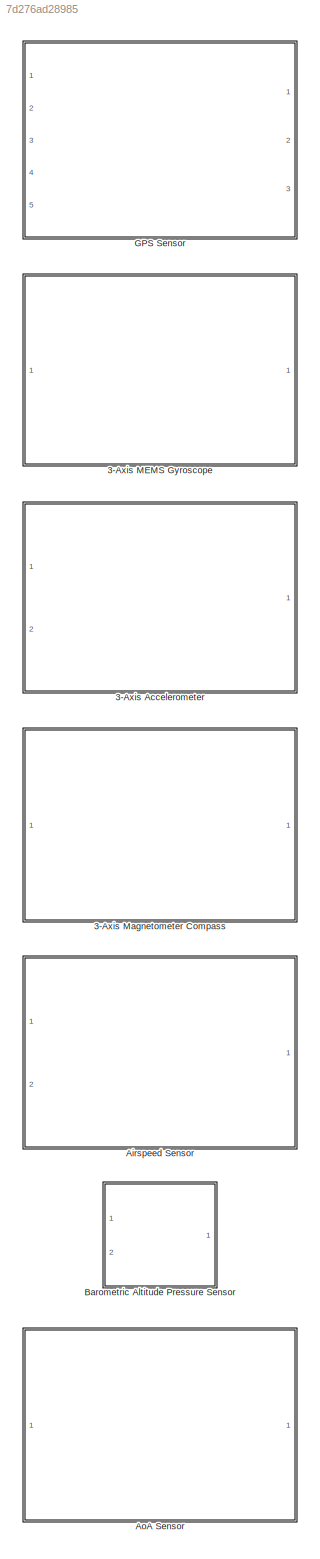
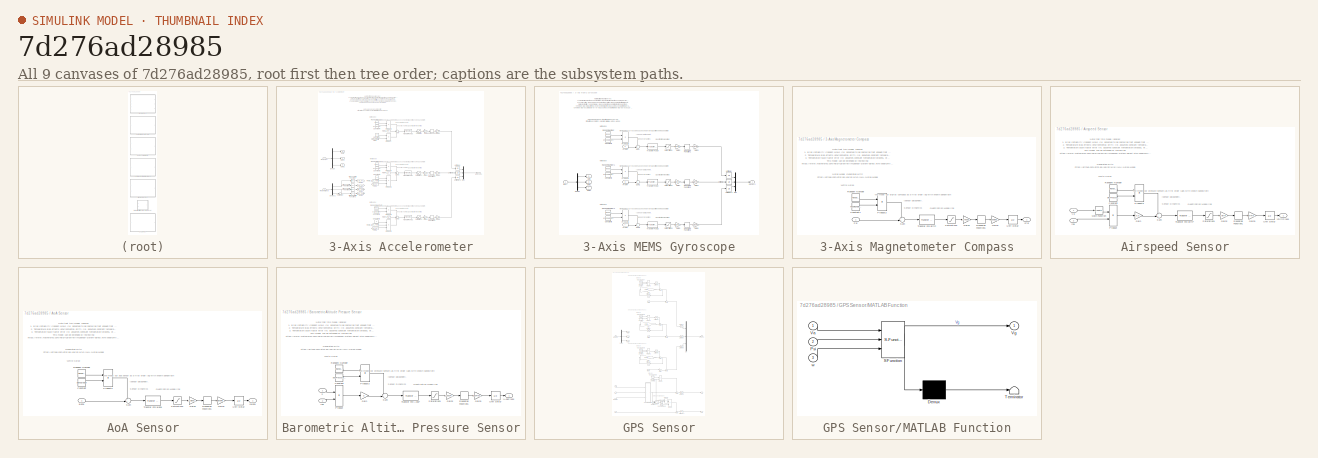
[diagram: thumbnail index - all 9 canvases of the model, root first then tree order]
MODEL slx_7d276ad28985
KIND library
CONFIG AbsTol = auto
CONFIG EnableMultiTasking = off
CONFIG FixedStep = auto
CONFIG MaxStep = auto
CONFIG MinStep = auto
CONFIG RelTol = 1e-3
CONFIG SampleTimeConstraint = Unconstrained
CONFIG Solver = VariableStepAuto
CONFIG SolverName = VariableStepAuto
CONFIG StartTime = 0.0
CONFIG StopTime = 10.0
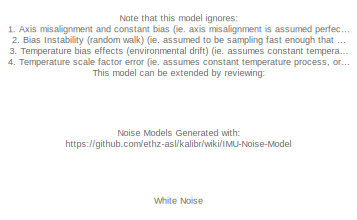
[diagram: 3-Axis Accelerometer - part 1/3, top left region]
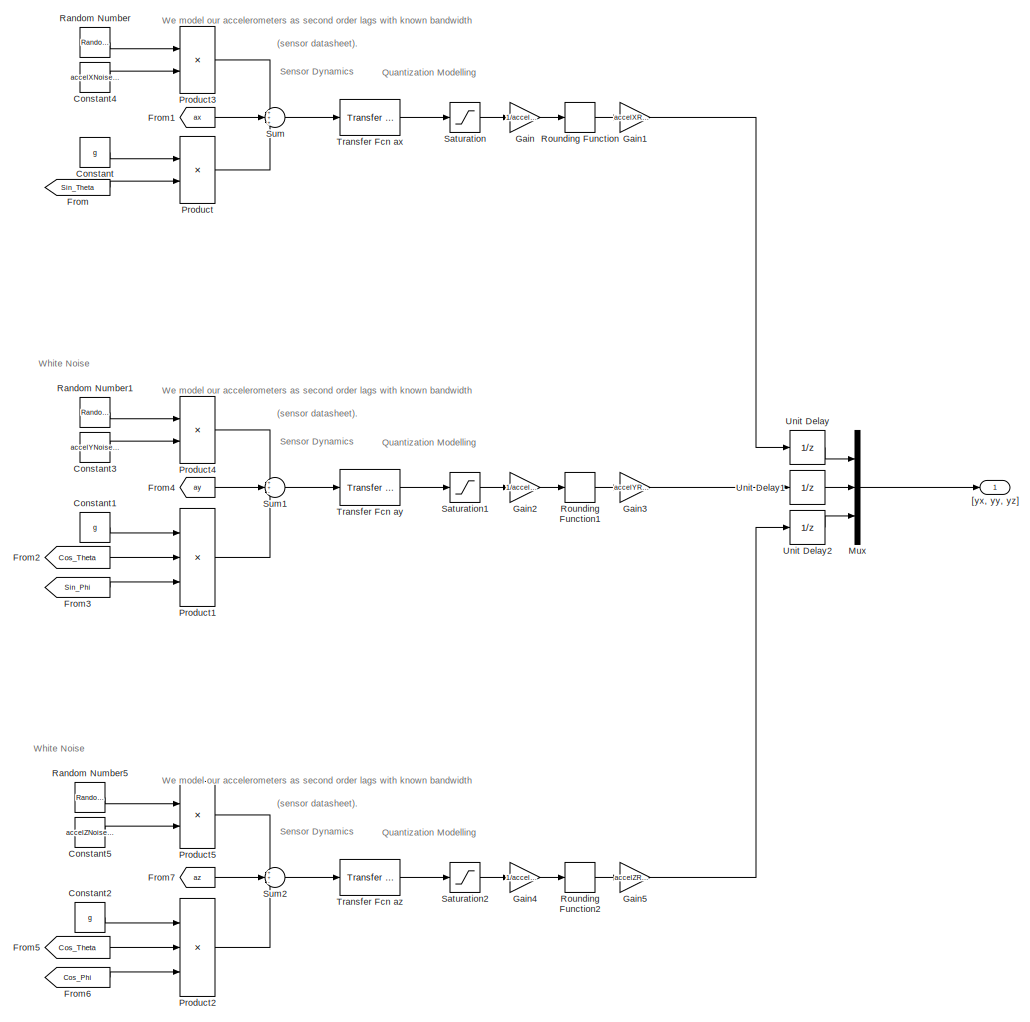
[diagram: 3-Axis Accelerometer - part 2/3, center side, full height]
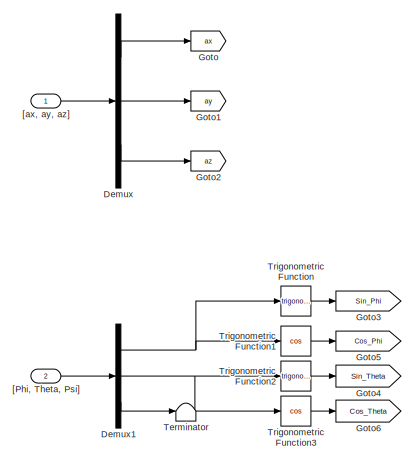
[diagram: 3-Axis Accelerometer - part 3/3, middle left region]
BLOCK [SubSystem] 3-Axis Accelerometer
  Ports = [2, 1]
  RequestExecContextInheritance = off
BLOCK [Constant] 3-Axis Accelerometer/Constant
  Value = g
BLOCK [Constant] 3-Axis Accelerometer/Constant1
  Value = g
BLOCK [Constant] 3-Axis Accelerometer/Constant2
  Value = g
BLOCK [Constant] 3-Axis Accelerometer/Constant3
  Value = accelYNoiseDensity*(1/sqrt(SampleTime))
BLOCK [Constant] 3-Axis Accelerometer/Constant4
  Value = accelXNoiseDensity*(1/sqrt(SampleTime))
BLOCK [Constant] 3-Axis Accelerometer/Constant5
  Value = accelZNoiseDensity*(1/sqrt(SampleTime))
BLOCK [Demux] 3-Axis Accelerometer/Demux
  DisplayOption = bar
  Outputs = 3
  Ports = [1, 3]
BLOCK [Demux] 3-Axis Accelerometer/Demux1
  DisplayOption = bar
  Outputs = 3
  Ports = [1, 3]
BLOCK [From] 3-Axis Accelerometer/From
  GotoTag = Sin_Theta
BLOCK [From] 3-Axis Accelerometer/From1
  GotoTag = ax
BLOCK [From] 3-Axis Accelerometer/From2
  GotoTag = Cos_Theta
BLOCK [From] 3-Axis Accelerometer/From3
  GotoTag = Sin_Phi
BLOCK [From] 3-Axis Accelerometer/From4
  GotoTag = ay
BLOCK [From] 3-Axis Accelerometer/From5
  GotoTag = Cos_Theta
BLOCK [From] 3-Axis Accelerometer/From6
  GotoTag = Cos_Phi
BLOCK [From] 3-Axis Accelerometer/From7
  GotoTag = az
BLOCK [Gain] 3-Axis Accelerometer/Gain
  Gain = 1/accelXResolution
  OutDataTypeStr = Inherit: Inherit via internal rule
  ParamDataTypeStr = Inherit: Inherit via internal rule
  SaturateOnIntegerOverflow = off
BLOCK [Gain] 3-Axis Accelerometer/Gain1
  Gain = accelXResolution
  OutDataTypeStr = Inherit: Inherit via internal rule
  ParamDataTypeStr = Inherit: Inherit via internal rule
  SaturateOnIntegerOverflow = off
BLOCK [Gain] 3-Axis Accelerometer/Gain2
  Gain = 1/accelYResolution
  OutDataTypeStr = Inherit: Inherit via internal rule
  ParamDataTypeStr = Inherit: Inherit via internal rule
  SaturateOnIntegerOverflow = off
BLOCK [Gain] 3-Axis Accelerometer/Gain3
  Gain = accelYResolution
  OutDataTypeStr = Inherit: Inherit via internal rule
  ParamDataTypeStr = Inherit: Inherit via internal rule
  SaturateOnIntegerOverflow = off
BLOCK [Gain] 3-Axis Accelerometer/Gain4
  Gain = 1/accelZResolution
  OutDataTypeStr = Inherit: Inherit via internal rule
  ParamDataTypeStr = Inherit: Inherit via internal rule
  SaturateOnIntegerOverflow = off
BLOCK [Gain] 3-Axis Accelerometer/Gain5
  Gain = accelZResolution
  OutDataTypeStr = Inherit: Inherit via internal rule
  ParamDataTypeStr = Inherit: Inherit via internal rule
  SaturateOnIntegerOverflow = off
BLOCK [Goto] 3-Axis Accelerometer/Goto
  GotoTag = ax
BLOCK [Goto] 3-Axis Accelerometer/Goto1
  GotoTag = ay
BLOCK [Goto] 3-Axis Accelerometer/Goto2
  GotoTag = az
BLOCK [Goto] 3-Axis Accelerometer/Goto3
  GotoTag = Sin_Phi
BLOCK [Goto] 3-Axis Accelerometer/Goto4
  GotoTag = Sin_Theta
BLOCK [Goto] 3-Axis Accelerometer/Goto5
  GotoTag = Cos_Phi
BLOCK [Goto] 3-Axis Accelerometer/Goto6
  GotoTag = Cos_Theta
BLOCK [Mux] 3-Axis Accelerometer/Mux
  DisplayOption = bar
  Inputs = 3
  Ports = [3, 1]
BLOCK [Product] 3-Axis Accelerometer/Product
  InputSameDT = off
  OutDataTypeStr = Inherit: Inherit via internal rule
  Ports = [2, 1]
  RndMeth = Floor
  SaturateOnIntegerOverflow = off
BLOCK [Product] 3-Axis Accelerometer/Product1
  InputSameDT = off
  Inputs = 3
  OutDataTypeStr = Inherit: Inherit via internal rule
  Ports = [3, 1]
  RndMeth = Floor
  SaturateOnIntegerOverflow = off
BLOCK [Product] 3-Axis Accelerometer/Product2
  InputSameDT = off
  Inputs = 3
  OutDataTypeStr = Inherit: Inherit via internal rule
  Ports = [3, 1]
  RndMeth = Floor
  SaturateOnIntegerOverflow = off
BLOCK [Product] 3-Axis Accelerometer/Product3
  InputSameDT = off
  OutDataTypeStr = Inherit: Inherit via internal rule
  Ports = [2, 1]
  RndMeth = Floor
  SaturateOnIntegerOverflow = off
BLOCK [Product] 3-Axis Accelerometer/Product4
  InputSameDT = off
  OutDataTypeStr = Inherit: Inherit via internal rule
  Ports = [2, 1]
  RndMeth = Floor
  SaturateOnIntegerOverflow = off
BLOCK [Product] 3-Axis Accelerometer/Product5
  InputSameDT = off
  OutDataTypeStr = Inherit: Inherit via internal rule
  Ports = [2, 1]
  RndMeth = Floor
  SaturateOnIntegerOverflow = off
BLOCK [RandomNumber] 3-Axis Accelerometer/Random Number
  SampleTime = SampleTime
BLOCK [RandomNumber] 3-Axis Accelerometer/Random Number1
  SampleTime = SampleTime
BLOCK [RandomNumber] 3-Axis Accelerometer/Random Number5
  SampleTime = SampleTime
BLOCK [Rounding] 3-Axis Accelerometer/Rounding Function
BLOCK [Rounding] 3-Axis Accelerometer/Rounding Function1
BLOCK [Rounding] 3-Axis Accelerometer/Rounding Function2
BLOCK [Saturate] 3-Axis Accelerometer/Saturation
  InputPortMap = u0
  LowerLimit = accelXLowerSaturation
  Ports = [1, 1]
  UpperLimit = accelXUpperSaturation
  ZeroCross = off
BLOCK [Saturate] 3-Axis Accelerometer/Saturation1
  InputPortMap = u0
  LowerLimit = accelYLowerSaturation
  Ports = [1, 1]
  UpperLimit = accelYUpperSaturation
  ZeroCross = off
BLOCK [Saturate] 3-Axis Accelerometer/Saturation2
  InputPortMap = u0
  LowerLimit = accelZLowerSaturation
  Ports = [1, 1]
  UpperLimit = accelZUpperSaturation
  ZeroCross = off
BLOCK [Sum] 3-Axis Accelerometer/Sum
  IconShape = round
  InputSameDT = off
  Inputs = +++
  OutDataTypeStr = Inherit: Inherit via internal rule
  Ports = [3, 1]
  SaturateOnIntegerOverflow = off
BLOCK [Sum] 3-Axis Accelerometer/Sum1
  IconShape = round
  InputSameDT = off
  Inputs = ++-
  OutDataTypeStr = Inherit: Inherit via internal rule
  Ports = [3, 1]
  SaturateOnIntegerOverflow = off
BLOCK [Sum] 3-Axis Accelerometer/Sum2
  IconShape = round
  InputSameDT = off
  Inputs = ++-
  OutDataTypeStr = Inherit: Inherit via internal rule
  Ports = [3, 1]
  SaturateOnIntegerOverflow = off
BLOCK [Terminator] 3-Axis Accelerometer/Terminator
BLOCK [Reference] 3-Axis Accelerometer/Transfer Fcn ax  REF=simulink_extras/Additional
Linear/Transfer Fcn
(with initial outputs)
  Ports = [1, 1]
  SourceBlock = simulink_extras/Additional\nLinear/Transfer Fcn\n(with initial outputs)
  SourceProductBaseCode = SL
  SourceProductName = Simulink
  SourceType = Transfer Function with Initial Outputs
BLOCK [Reference] 3-Axis Accelerometer/Transfer Fcn ay  REF=simulink_extras/Additional
Linear/Transfer Fcn
(with initial outputs)
  Ports = [1, 1]
  SourceBlock = simulink_extras/Additional\nLinear/Transfer Fcn\n(with initial outputs)
  SourceProductBaseCode = SL
  SourceProductName = Simulink
  SourceType = Transfer Function with Initial Outputs
BLOCK [Reference] 3-Axis Accelerometer/Transfer Fcn az  REF=simulink_extras/Additional
Linear/Transfer Fcn
(with initial outputs)
  Ports = [1, 1]
  SourceBlock = simulink_extras/Additional\nLinear/Transfer Fcn\n(with initial outputs)
  SourceProductBaseCode = SL
  SourceProductName = Simulink
  SourceType = Transfer Function with Initial Outputs
BLOCK [Trigonometry] 3-Axis Accelerometer/Trigonometric Function
  Ports = [1, 1]
BLOCK [Trigonometry] 3-Axis Accelerometer/Trigonometric Function1
  Operator = cos
  Ports = [1, 1]
BLOCK [Trigonometry] 3-Axis Accelerometer/Trigonometric Function2
  Ports = [1, 1]
BLOCK [Trigonometry] 3-Axis Accelerometer/Trigonometric Function3
  Operator = cos
  Ports = [1, 1]
BLOCK [UnitDelay] 3-Axis Accelerometer/Unit Delay
  InitialCondition = accelXInit
  InputProcessing = Elements as channels (sample based)
  SampleTime = SampleTime
BLOCK [UnitDelay] 3-Axis Accelerometer/Unit Delay1
  InitialCondition = accelYInit
  InputProcessing = Elements as channels (sample based)
  SampleTime = SampleTime
BLOCK [UnitDelay] 3-Axis Accelerometer/Unit Delay2
  InitialCondition = accelZInit
  InputProcessing = Elements as channels (sample based)
  SampleTime = SampleTime
BLOCK [Inport] 3-Axis Accelerometer/[Phi, Theta, Psi]
  IconDisplay = Port number
  Port = 2
BLOCK [Inport] 3-Axis Accelerometer/[ax, ay, az]
  IconDisplay = Port number
BLOCK [Outport] 3-Axis Accelerometer/[yx, yy, yz]
  IconDisplay = Port number
BLOCK [SubSystem] 3-Axis MEMS Gyroscope
  Ports = [1, 1]
  RequestExecContextInheritance = off
BLOCK [Constant] 3-Axis MEMS Gyroscope/Constant3
  Value = gyroYNoiseDensity*(1/sqrt(SampleTime))
BLOCK [Constant] 3-Axis MEMS Gyroscope/Constant4
  Value = gyroXNoiseDensity*(1/sqrt(SampleTime))
BLOCK [Constant] 3-Axis MEMS Gyroscope/Constant5
  Value = gyroZNoiseDensity*(1/sqrt(SampleTime))
BLOCK [Demux] 3-Axis MEMS Gyroscope/Demux
  DisplayOption = bar
  Outputs = 3
  Ports = [1, 3]
BLOCK [From] 3-Axis MEMS Gyroscope/From1
  GotoTag = p
BLOCK [From] 3-Axis MEMS Gyroscope/From4
  GotoTag = q
BLOCK [From] 3-Axis MEMS Gyroscope/From7
  GotoTag = r
BLOCK [Gain] 3-Axis MEMS Gyroscope/Gain1
  Gain = 1/gyroYResolution
  OutDataTypeStr = Inherit: Inherit via internal rule
  ParamDataTypeStr = Inherit: Inherit via internal rule
  SaturateOnIntegerOverflow = off
BLOCK [Gain] 3-Axis MEMS Gyroscope/Gain2
  Gain = 1/gyroXResolution
  OutDataTypeStr = Inherit: Inherit via internal rule
  ParamDataTypeStr = Inherit: Inherit via internal rule
  SaturateOnIntegerOverflow = off
BLOCK [Gain] 3-Axis MEMS Gyroscope/Gain3
  Gain = gyroXResolution
  OutDataTypeStr = Inherit: Inherit via internal rule
  ParamDataTypeStr = Inherit: Inherit via internal rule
  SaturateOnIntegerOverflow = off
BLOCK [Gain] 3-Axis MEMS Gyroscope/Gain4
  Gain = gyroYResolution
  OutDataTypeStr = Inherit: Inherit via internal rule
  ParamDataTypeStr = Inherit: Inherit via internal rule
  SaturateOnIntegerOverflow = off
BLOCK [Gain] 3-Axis MEMS Gyroscope/Gain5
  Gain = 1/gyroZResolution
  OutDataTypeStr = Inherit: Inherit via internal rule
  ParamDataTypeStr = Inherit: Inherit via internal rule
  SaturateOnIntegerOverflow = off
BLOCK [Gain] 3-Axis MEMS Gyroscope/Gain6
  Gain = gyroZResolution
  OutDataTypeStr = Inherit: Inherit via internal rule
  ParamDataTypeStr = Inherit: Inherit via internal rule
  SaturateOnIntegerOverflow = off
BLOCK [Goto] 3-Axis MEMS Gyroscope/Goto
  GotoTag = p
BLOCK [Goto] 3-Axis MEMS Gyroscope/Goto1
  GotoTag = q
BLOCK [Goto] 3-Axis MEMS Gyroscope/Goto2
  GotoTag = r
BLOCK [Mux] 3-Axis MEMS Gyroscope/Mux
  DisplayOption = bar
  Inputs = 3
  Ports = [3, 1]
BLOCK [Product] 3-Axis MEMS Gyroscope/Product3
  InputSameDT = off
  OutDataTypeStr = Inherit: Inherit via internal rule
  Ports = [2, 1]
  RndMeth = Floor
  SaturateOnIntegerOverflow = off
BLOCK [Product] 3-Axis MEMS Gyroscope/Product4
  InputSameDT = off
  OutDataTypeStr = Inherit: Inherit via internal rule
  Ports = [2, 1]
  RndMeth = Floor
  SaturateOnIntegerOverflow = off
BLOCK [Product] 3-Axis MEMS Gyroscope/Product5
  InputSameDT = off
  OutDataTypeStr = Inherit: Inherit via internal rule
  Ports = [2, 1]
  RndMeth = Floor
  SaturateOnIntegerOverflow = off
BLOCK [RandomNumber] 3-Axis MEMS Gyroscope/Random Number
  SampleTime = SampleTime
BLOCK [RandomNumber] 3-Axis MEMS Gyroscope/Random Number1
  SampleTime = SampleTime
BLOCK [RandomNumber] 3-Axis MEMS Gyroscope/Random Number2
  SampleTime = SampleTime
BLOCK [Rounding] 3-Axis MEMS Gyroscope/Rounding Function1
BLOCK [Rounding] 3-Axis MEMS Gyroscope/Rounding Function2
BLOCK [Rounding] 3-Axis MEMS Gyroscope/Rounding Function3
BLOCK [Saturate] 3-Axis MEMS Gyroscope/Saturation1
  InputPortMap = u0
  LowerLimit = gyroXLowerSaturation
  Ports = [1, 1]
  UpperLimit = gyroXUpperSaturation
BLOCK [Saturate] 3-Axis MEMS Gyroscope/Saturation2
  InputPortMap = u0
  LowerLimit = gyroYLowerSaturation
  Ports = [1, 1]
  UpperLimit = gyroYUpperSaturation
BLOCK [Saturate] 3-Axis MEMS Gyroscope/Saturation3
  InputPortMap = u0
  LowerLimit = gyroZLowerSaturation
  Ports = [1, 1]
  UpperLimit = gyroZUpperSaturation
BLOCK [Sum] 3-Axis MEMS Gyroscope/Sum
  IconShape = round
  InputSameDT = off
  Inputs = ++|
  OutDataTypeStr = Inherit: Inherit via internal rule
  Ports = [2, 1]
  SaturateOnIntegerOverflow = off
BLOCK [Sum] 3-Axis MEMS Gyroscope/Sum1
  IconShape = round
  InputSameDT = off
  Inputs = ++|
  OutDataTypeStr = Inherit: Inherit via internal rule
  Ports = [2, 1]
  SaturateOnIntegerOverflow = off
BLOCK [Sum] 3-Axis MEMS Gyroscope/Sum2
  IconShape = round
  InputSameDT = off
  Inputs = ++|
  OutDataTypeStr = Inherit: Inherit via internal rule
  Ports = [2, 1]
  SaturateOnIntegerOverflow = off
BLOCK [Reference] 3-Axis MEMS Gyroscope/Transfer Fcn gx  REF=simulink_extras/Additional
Linear/Transfer Fcn
(with initial outputs)
  Ports = [1, 1]
  SourceBlock = simulink_extras/Additional\nLinear/Transfer Fcn\n(with initial outputs)
  SourceProductBaseCode = SL
  SourceProductName = Simulink
  SourceType = Transfer Function with Initial Outputs
BLOCK [Reference] 3-Axis MEMS Gyroscope/Transfer Fcn gy  REF=simulink_extras/Additional
Linear/Transfer Fcn
(with initial outputs)
  Ports = [1, 1]
  SourceBlock = simulink_extras/Additional\nLinear/Transfer Fcn\n(with initial outputs)
  SourceProductBaseCode = SL
  SourceProductName = Simulink
  SourceType = Transfer Function with Initial Outputs
BLOCK [Reference] 3-Axis MEMS Gyroscope/Transfer Fcn gz  REF=simulink_extras/Additional
Linear/Transfer Fcn
(with initial outputs)
  Ports = [1, 1]
  SourceBlock = simulink_extras/Additional\nLinear/Transfer Fcn\n(with initial outputs)
  SourceProductBaseCode = SL
  SourceProductName = Simulink
  SourceType = Transfer Function with Initial Outputs
BLOCK [UnitDelay] 3-Axis MEMS Gyroscope/Unit Delay
  InitialCondition = gyroXInit
  InputProcessing = Elements as channels (sample based)
  SampleTime = SampleTime
BLOCK [UnitDelay] 3-Axis MEMS Gyroscope/Unit Delay1
  InitialCondition = gyroYInit
  InputProcessing = Elements as channels (sample based)
  SampleTime = SampleTime
BLOCK [UnitDelay] 3-Axis MEMS Gyroscope/Unit Delay2
  InitialCondition = gyroZInit
  InputProcessing = Elements as channels (sample based)
  SampleTime = SampleTime
BLOCK [Inport] 3-Axis MEMS Gyroscope/[p, q, r]
  IconDisplay = Port number
BLOCK [Outport] 3-Axis MEMS Gyroscope/[yp, yq, yr]
  IconDisplay = Port number
BLOCK [SubSystem] 3-Axis Magnetometer Compass
  Ports = [1, 1]
  RequestExecContextInheritance = off
BLOCK [Constant] 3-Axis Magnetometer Compass/Constant4
  Value = headingNoiseDensity*(1/sqrt(SampleTime))
BLOCK [Gain] 3-Axis Magnetometer Compass/Gain2
  Gain = 1/headingResolution
  OutDataTypeStr = Inherit: Inherit via internal rule
  ParamDataTypeStr = Inherit: Inherit via internal rule
  SaturateOnIntegerOverflow = off
BLOCK [Gain] 3-Axis Magnetometer Compass/Gain3
  Gain = headingResolution
  OutDataTypeStr = Inherit: Inherit via internal rule
  ParamDataTypeStr = Inherit: Inherit via internal rule
  SaturateOnIntegerOverflow = off
BLOCK [Product] 3-Axis Magnetometer Compass/Product3
  InputSameDT = off
  OutDataTypeStr = Inherit: Inherit via internal rule
  Ports = [2, 1]
  RndMeth = Floor
  SaturateOnIntegerOverflow = off
BLOCK [Inport] 3-Axis Magnetometer Compass/Psi
  IconDisplay = Port number
BLOCK [RandomNumber] 3-Axis Magnetometer Compass/Random Number
  SampleTime = SampleTime
BLOCK [Rounding] 3-Axis Magnetometer Compass/Rounding Function1
BLOCK [Saturate] 3-Axis Magnetometer Compass/Saturation1
  InputPortMap = u0
  LowerLimit = headingLowerSaturation
  Ports = [1, 1]
  UpperLimit = headingUpperSaturation
BLOCK [Sum] 3-Axis Magnetometer Compass/Sum
  IconShape = round
  InputSameDT = off
  Inputs = ++|
  OutDataTypeStr = Inherit: Inherit via internal rule
  Ports = [2, 1]
  SaturateOnIntegerOverflow = off
BLOCK [Reference] 3-Axis Magnetometer Compass/Transfer Fcn diffP  REF=simulink_extras/Additional
Linear/Transfer Fcn
(with initial outputs)
  Ports = [1, 1]
  SourceBlock = simulink_extras/Additional\nLinear/Transfer Fcn\n(with initial outputs)
  SourceProductBaseCode = SL
  SourceProductName = Simulink
  SourceType = Transfer Function with Initial Outputs
BLOCK [UnitDelay] 3-Axis Magnetometer Compass/Unit Delay
  InitialCondition = headingInit
  InputProcessing = Elements as channels (sample based)
  SampleTime = SampleTime
BLOCK [Outport] 3-Axis Magnetometer Compass/yPsi
  IconDisplay = Port number
BLOCK [SubSystem] Airspeed Sensor
  Ports = [2, 1]
  RequestExecContextInheritance = off
BLOCK [Constant] Airspeed Sensor/Constant
  Value = diffPressureStdDev
BLOCK [Gain] Airspeed Sensor/Gain
  Gain = 0.5
  OutDataTypeStr = Inherit: Inherit via internal rule
  ParamDataTypeStr = Inherit: Inherit via internal rule
  SaturateOnIntegerOverflow = off
BLOCK [Gain] Airspeed Sensor/Gain2
  Gain = 1/diffPressureResolution
  OutDataTypeStr = Inherit: Inherit via internal rule
  ParamDataTypeStr = Inherit: Inherit via internal rule
  SaturateOnIntegerOverflow = off
BLOCK [Gain] Airspeed Sensor/Gain3
  Gain = diffPressureResolution
  OutDataTypeStr = Inherit: Inherit via internal rule
  ParamDataTypeStr = Inherit: Inherit via internal rule
  SaturateOnIntegerOverflow = off
BLOCK [Math] Airspeed Sensor/Math Function
  Operator = magnitude^2
  Ports = [1, 1]
BLOCK [Product] Airspeed Sensor/Product
  InputSameDT = off
  OutDataTypeStr = Inherit: Inherit via internal rule
  Ports = [2, 1]
  RndMeth = Floor
  SaturateOnIntegerOverflow = off
BLOCK [Product] Airspeed Sensor/Product3
  InputSameDT = off
  OutDataTypeStr = Inherit: Inherit via internal rule
  Ports = [2, 1]
  RndMeth = Floor
  SaturateOnIntegerOverflow = off
BLOCK [RandomNumber] Airspeed Sensor/Random Number
  SampleTime = SampleTime
BLOCK [Rounding] Airspeed Sensor/Rounding Function1
BLOCK [Saturate] Airspeed Sensor/Saturation1
  InputPortMap = u0
  LowerLimit = diffPressureLowerSaturation
  Ports = [1, 1]
  UpperLimit = diffPressureUpperSaturation
BLOCK [Sum] Airspeed Sensor/Sum
  IconShape = round
  InputSameDT = off
  Inputs = ++|
  OutDataTypeStr = Inherit: Inherit via internal rule
  Ports = [2, 1]
  SaturateOnIntegerOverflow = off
BLOCK [Reference] Airspeed Sensor/Transfer Fcn diffP  REF=simulink_extras/Additional
Linear/Transfer Fcn
(with initial outputs)
  Ports = [1, 1]
  SourceBlock = simulink_extras/Additional\nLinear/Transfer Fcn\n(with initial outputs)
  SourceProductBaseCode = SL
  SourceProductName = Simulink
  SourceType = Transfer Function with Initial Outputs
BLOCK [UnitDelay] Airspeed Sensor/Unit Delay
  InitialCondition = diffPressureInit
  InputProcessing = Elements as channels (sample based)
  SampleTime = SampleTime
BLOCK [Inport] Airspeed Sensor/Va
  IconDisplay = Port number
BLOCK [Inport] Airspeed Sensor/rho
  IconDisplay = Port number
  Port = 2
BLOCK [Outport] Airspeed Sensor/yDiffPress
  IconDisplay = Port number
BLOCK [SubSystem] AoA Sensor
  Ports = [1, 1]
  RequestExecContextInheritance = off
BLOCK [Constant] AoA Sensor/Constant
  Value = alphaStdDev
BLOCK [Gain] AoA Sensor/Gain2
  Gain = 1/alphaResolution
  OutDataTypeStr = Inherit: Inherit via internal rule
  ParamDataTypeStr = Inherit: Inherit via internal rule
  SaturateOnIntegerOverflow = off
BLOCK [Gain] AoA Sensor/Gain3
  Gain = alphaResolution
  OutDataTypeStr = Inherit: Inherit via internal rule
  ParamDataTypeStr = Inherit: Inherit via internal rule
  SaturateOnIntegerOverflow = off
BLOCK [Product] AoA Sensor/Product3
  InputSameDT = off
  OutDataTypeStr = Inherit: Inherit via internal rule
  Ports = [2, 1]
  RndMeth = Floor
  SaturateOnIntegerOverflow = off
BLOCK [RandomNumber] AoA Sensor/Random Number
  SampleTime = SampleTime
BLOCK [Rounding] AoA Sensor/Rounding Function1
BLOCK [Saturate] AoA Sensor/Saturation1
  InputPortMap = u0
  LowerLimit = alphaLowerSaturation
  Ports = [1, 1]
  UpperLimit = alphaUpperSaturation
BLOCK [Sum] AoA Sensor/Sum
  IconShape = round
  InputSameDT = off
  Inputs = ++|
  OutDataTypeStr = Inherit: Inherit via internal rule
  Ports = [2, 1]
  SaturateOnIntegerOverflow = off
BLOCK [Reference] AoA Sensor/Transfer Fcn alpha  REF=simulink_extras/Additional
Linear/Transfer Fcn
(with initial outputs)
  Ports = [1, 1]
  SourceBlock = simulink_extras/Additional\nLinear/Transfer Fcn\n(with initial outputs)
  SourceProductBaseCode = SL
  SourceProductName = Simulink
  SourceType = Transfer Function with Initial Outputs
BLOCK [UnitDelay] AoA Sensor/Unit Delay
  InitialCondition = alphaInit
  InputProcessing = Elements as channels (sample based)
  SampleTime = SampleTime
BLOCK [Inport] AoA Sensor/alpha
  IconDisplay = Port number
BLOCK [Outport] AoA Sensor/yalpha
  IconDisplay = Port number
BLOCK [SubSystem] Barometric Altitude Pressure Sensor
  Ports = [2, 1]
  RequestExecContextInheritance = off
BLOCK [Constant] Barometric Altitude Pressure Sensor/Constant
  Value = absPressureStdDev
BLOCK [Gain] Barometric Altitude Pressure Sensor/Gain
  Gain = g
  OutDataTypeStr = Inherit: Inherit via internal rule
  ParamDataTypeStr = Inherit: Inherit via internal rule
  SaturateOnIntegerOverflow = off
BLOCK [Gain] Barometric Altitude Pressure Sensor/Gain2
  Gain = 1/absPressureResolution
  OutDataTypeStr = Inherit: Inherit via internal rule
  ParamDataTypeStr = Inherit: Inherit via internal rule
  SaturateOnIntegerOverflow = off
BLOCK [Gain] Barometric Altitude Pressure Sensor/Gain3
  Gain = absPressureResolution
  OutDataTypeStr = Inherit: Inherit via internal rule
  ParamDataTypeStr = Inherit: Inherit via internal rule
  SaturateOnIntegerOverflow = off
BLOCK [Product] Barometric Altitude Pressure Sensor/Product
  InputSameDT = off
  OutDataTypeStr = Inherit: Inherit via internal rule
  Ports = [2, 1]
  RndMeth = Floor
  SaturateOnIntegerOverflow = off
BLOCK [Product] Barometric Altitude Pressure Sensor/Product3
  InputSameDT = off
  OutDataTypeStr = Inherit: Inherit via internal rule
  Ports = [2, 1]
  RndMeth = Floor
  SaturateOnIntegerOverflow = off
BLOCK [RandomNumber] Barometric Altitude Pressure Sensor/Random Number
  SampleTime = SampleTime
BLOCK [Rounding] Barometric Altitude Pressure Sensor/Rounding Function1
BLOCK [Saturate] Barometric Altitude Pressure Sensor/Saturation1
  InputPortMap = u0
  LowerLimit = absPressureLowerSaturation
  Ports = [1, 1]
  UpperLimit = absPressureUpperSaturation
BLOCK [Sum] Barometric Altitude Pressure Sensor/Sum
  IconShape = round
  InputSameDT = off
  Inputs = ++|
  OutDataTypeStr = Inherit: Inherit via internal rule
  Ports = [2, 1]
  SaturateOnIntegerOverflow = off
BLOCK [Reference] Barometric Altitude Pressure Sensor/Transfer Fcn AbsP  REF=simulink_extras/Additional
Linear/Transfer Fcn
(with initial outputs)
  Ports = [1, 1]
  SourceBlock = simulink_extras/Additional\nLinear/Transfer Fcn\n(with initial outputs)
  SourceProductBaseCode = SL
  SourceProductName = Simulink
  SourceType = Transfer Function with Initial Outputs
BLOCK [UnitDelay] Barometric Altitude Pressure Sensor/Unit Delay
  InitialCondition = absPressureInit
  InputProcessing = Elements as channels (sample based)
  SampleTime = SampleTime
BLOCK [Inport] Barometric Altitude Pressure Sensor/h
  IconDisplay = Port number
BLOCK [Inport] Barometric Altitude Pressure Sensor/rho
  IconDisplay = Port number
  Port = 2
BLOCK [Outport] Barometric Altitude Pressure Sensor/yAbsPress
  IconDisplay = Port number
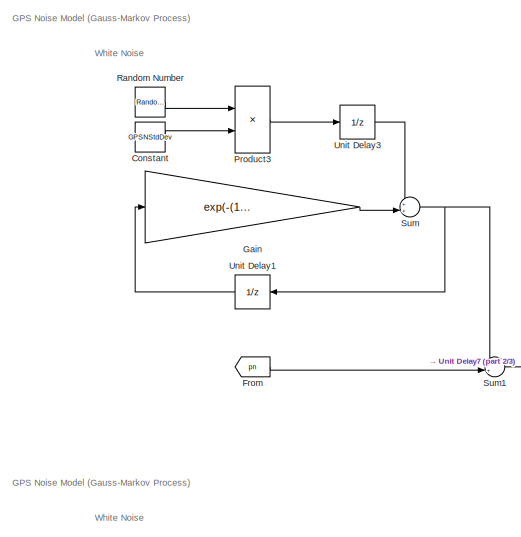
[diagram: GPS Sensor - part 1/3, top center region]
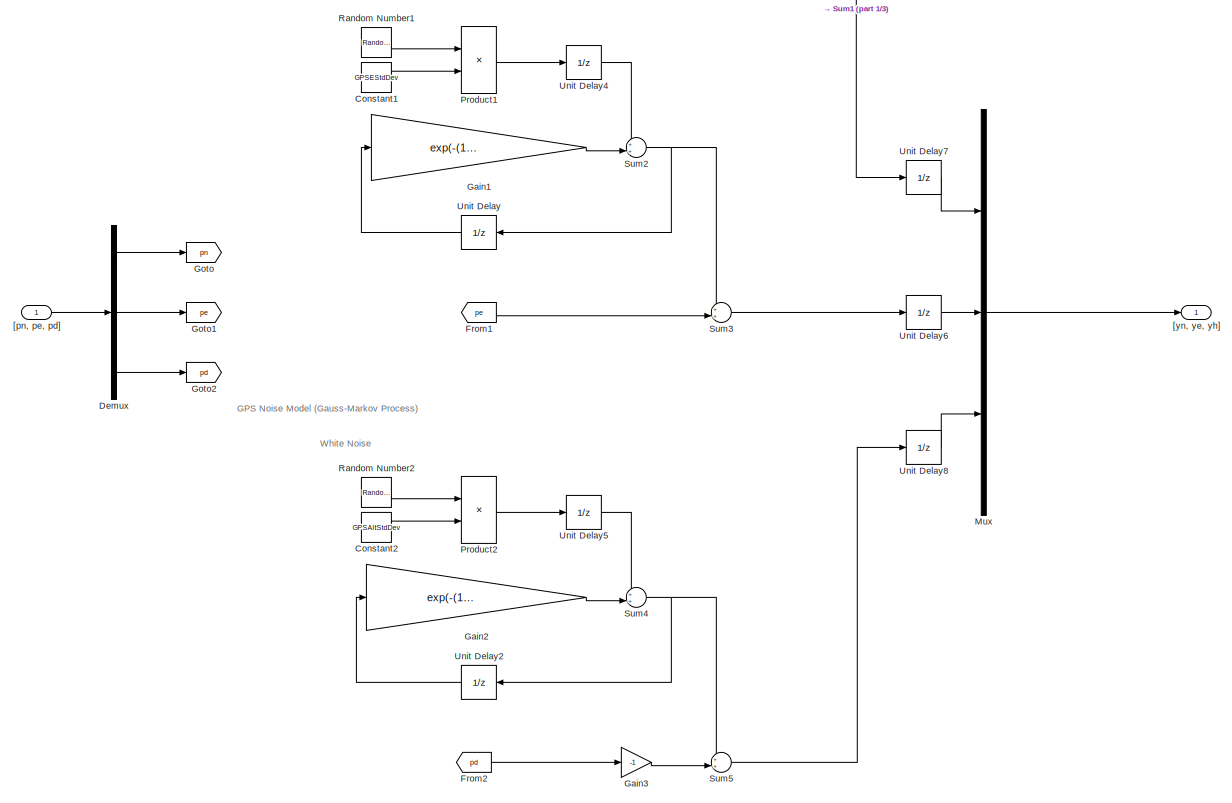
[diagram: GPS Sensor - part 2/3, full width, middle band]
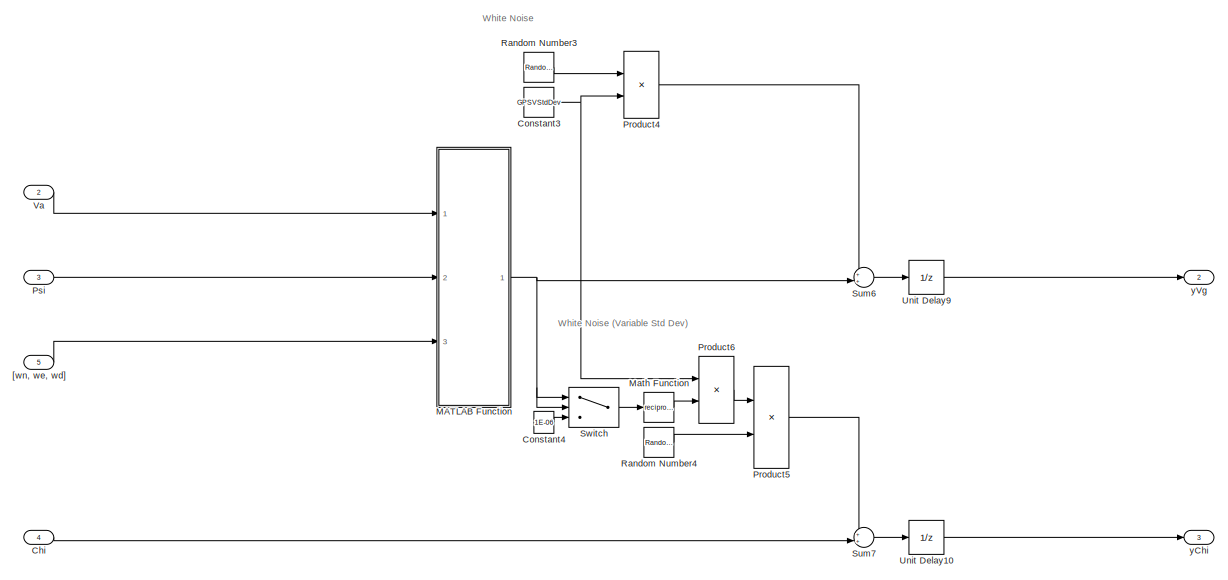
[diagram: GPS Sensor - part 3/3, full width, bottom band]
BLOCK [SubSystem] GPS Sensor
  Ports = [5, 3]
  RequestExecContextInheritance = off
BLOCK [Inport] GPS Sensor/Chi
  IconDisplay = Port number
  Port = 4
BLOCK [Constant] GPS Sensor/Constant
  Value = GPSNStdDev
BLOCK [Constant] GPS Sensor/Constant1
  Value = GPSEStdDev
BLOCK [Constant] GPS Sensor/Constant2
  Value = GPSAltStdDev
BLOCK [Constant] GPS Sensor/Constant3
  Value = GPSVStdDev
BLOCK [Constant] GPS Sensor/Constant4
  Value = 1E-06
BLOCK [Demux] GPS Sensor/Demux
  DisplayOption = bar
  Outputs = 3
  Ports = [1, 3]
BLOCK [From] GPS Sensor/From
  GotoTag = pn
BLOCK [From] GPS Sensor/From1
  GotoTag = pe
BLOCK [From] GPS Sensor/From2
  GotoTag = pd
BLOCK [Gain] GPS Sensor/Gain
  Gain = exp(-(1/OneOverkGPSN)*SampleTime)
  OutDataTypeStr = Inherit: Inherit via internal rule
  ParamDataTypeStr = Inherit: Inherit via internal rule
  SaturateOnIntegerOverflow = off
BLOCK [Gain] GPS Sensor/Gain1
  Gain = exp(-(1/OneOverkGPSE)*SampleTime)
  OutDataTypeStr = Inherit: Inherit via internal rule
  ParamDataTypeStr = Inherit: Inherit via internal rule
  SaturateOnIntegerOverflow = off
BLOCK [Gain] GPS Sensor/Gain2
  Gain = exp(-(1/OneOverkGPSAlt)*SampleTime)
  OutDataTypeStr = Inherit: Inherit via internal rule
  ParamDataTypeStr = Inherit: Inherit via internal rule
  SaturateOnIntegerOverflow = off
BLOCK [Gain] GPS Sensor/Gain3
  Gain = -1
  OutDataTypeStr = Inherit: Inherit via internal rule
  ParamDataTypeStr = Inherit: Inherit via internal rule
  SaturateOnIntegerOverflow = off
BLOCK [Goto] GPS Sensor/Goto
  GotoTag = pn
BLOCK [Goto] GPS Sensor/Goto1
  GotoTag = pe
BLOCK [Goto] GPS Sensor/Goto2
  GotoTag = pd
BLOCK [SubSystem] GPS Sensor/MATLAB Function
  ErrorFcn = Stateflow.Translate.translate
  PermitHierarchicalResolution = ExplicitOnly
  Ports = [3, 1]
  RequestExecContextInheritance = off
  SFBlockType = MATLAB Function
  TreatAsAtomicUnit = on
BLOCK [Demux] GPS Sensor/MATLAB Function/ Demux 
  Outputs = 1
  Ports = [1, 1]
BLOCK [S-Function] GPS Sensor/MATLAB Function/ SFunction 
  EnableBusSupport = on
  FunctionName = sf_sfun
  PortCounts = [3 2]
  Ports = [3, 2]
  SFcnIsStateOwnerBlock = off
  SFunctionDeploymentMode = off
  Tag = Stateflow S-Function sensors 2
BLOCK [Terminator] GPS Sensor/MATLAB Function/ Terminator 
BLOCK [Inport] GPS Sensor/MATLAB Function/Psi
  IconDisplay = Port number
  Port = 2
BLOCK [Inport] GPS Sensor/MATLAB Function/Va
  IconDisplay = Port number
BLOCK [Outport] GPS Sensor/MATLAB Function/Vg
  IconDisplay = Port number
BLOCK [Inport] GPS Sensor/MATLAB Function/w
  IconDisplay = Port number
  Port = 3
BLOCK [Math] GPS Sensor/Math Function
  Operator = reciprocal
  Ports = [1, 1]
BLOCK [Mux] GPS Sensor/Mux
  DisplayOption = bar
  Inputs = 3
  Ports = [3, 1]
BLOCK [Product] GPS Sensor/Product1
  InputSameDT = off
  OutDataTypeStr = Inherit: Inherit via internal rule
  Ports = [2, 1]
  RndMeth = Floor
  SaturateOnIntegerOverflow = off
BLOCK [Product] GPS Sensor/Product2
  InputSameDT = off
  OutDataTypeStr = Inherit: Inherit via internal rule
  Ports = [2, 1]
  RndMeth = Floor
  SaturateOnIntegerOverflow = off
BLOCK [Product] GPS Sensor/Product3
  InputSameDT = off
  OutDataTypeStr = Inherit: Inherit via internal rule
  Ports = [2, 1]
  RndMeth = Floor
  SaturateOnIntegerOverflow = off
BLOCK [Product] GPS Sensor/Product4
  InputSameDT = off
  OutDataTypeStr = Inherit: Inherit via internal rule
  Ports = [2, 1]
  RndMeth = Floor
  SaturateOnIntegerOverflow = off
BLOCK [Product] GPS Sensor/Product5
  InputSameDT = off
  OutDataTypeStr = Inherit: Inherit via internal rule
  Ports = [2, 1]
  RndMeth = Floor
  SaturateOnIntegerOverflow = off
BLOCK [Product] GPS Sensor/Product6
  InputSameDT = off
  OutDataTypeStr = Inherit: Inherit via internal rule
  Ports = [2, 1]
  RndMeth = Floor
  SaturateOnIntegerOverflow = off
BLOCK [Inport] GPS Sensor/Psi
  IconDisplay = Port number
  Port = 3
BLOCK [RandomNumber] GPS Sensor/Random Number
  SampleTime = SampleTime
BLOCK [RandomNumber] GPS Sensor/Random Number1
  SampleTime = SampleTime
BLOCK [RandomNumber] GPS Sensor/Random Number2
  SampleTime = SampleTime
BLOCK [RandomNumber] GPS Sensor/Random Number3
  SampleTime = SampleTime
BLOCK [RandomNumber] GPS Sensor/Random Number4
  SampleTime = SampleTime
BLOCK [Sum] GPS Sensor/Sum
  IconShape = round
  InputSameDT = off
  Inputs = ++|
  OutDataTypeStr = Inherit: Inherit via internal rule
  Ports = [2, 1]
  SaturateOnIntegerOverflow = off
BLOCK [Sum] GPS Sensor/Sum1
  IconShape = round
  InputSameDT = off
  Inputs = ++|
  OutDataTypeStr = Inherit: Inherit via internal rule
  Ports = [2, 1]
  SaturateOnIntegerOverflow = off
BLOCK [Sum] GPS Sensor/Sum2
  IconShape = round
  InputSameDT = off
  Inputs = ++|
  OutDataTypeStr = Inherit: Inherit via internal rule
  Ports = [2, 1]
  SaturateOnIntegerOverflow = off
BLOCK [Sum] GPS Sensor/Sum3
  IconShape = round
  InputSameDT = off
  Inputs = ++|
  OutDataTypeStr = Inherit: Inherit via internal rule
  Ports = [2, 1]
  SaturateOnIntegerOverflow = off
BLOCK [Sum] GPS Sensor/Sum4
  IconShape = round
  InputSameDT = off
  Inputs = ++|
  OutDataTypeStr = Inherit: Inherit via internal rule
  Ports = [2, 1]
  SaturateOnIntegerOverflow = off
BLOCK [Sum] GPS Sensor/Sum5
  IconShape = round
  InputSameDT = off
  Inputs = ++|
  OutDataTypeStr = Inherit: Inherit via internal rule
  Ports = [2, 1]
  SaturateOnIntegerOverflow = off
BLOCK [Sum] GPS Sensor/Sum6
  IconShape = round
  InputSameDT = off
  Inputs = ++|
  OutDataTypeStr = Inherit: Inherit via internal rule
  Ports = [2, 1]
  SaturateOnIntegerOverflow = off
BLOCK [Sum] GPS Sensor/Sum7
  IconShape = round
  InputSameDT = off
  Inputs = ++|
  OutDataTypeStr = Inherit: Inherit via internal rule
  Ports = [2, 1]
  SaturateOnIntegerOverflow = off
BLOCK [Switch] GPS Sensor/Switch
  Criteria = u2 ~= 0
  InputSameDT = off
  SaturateOnIntegerOverflow = off
BLOCK [UnitDelay] GPS Sensor/Unit Delay
  InputProcessing = Elements as channels (sample based)
  SampleTime = SampleTime
BLOCK [UnitDelay] GPS Sensor/Unit Delay1
  InputProcessing = Elements as channels (sample based)
  SampleTime = SampleTime
BLOCK [UnitDelay] GPS Sensor/Unit Delay10
  InitialCondition = ChiInit
  InputProcessing = Elements as channels (sample based)
  SampleTime = SampleTime
BLOCK [UnitDelay] GPS Sensor/Unit Delay2
  InputProcessing = Elements as channels (sample based)
  SampleTime = SampleTime
BLOCK [UnitDelay] GPS Sensor/Unit Delay3
  InputProcessing = Elements as channels (sample based)
  SampleTime = SampleTime
BLOCK [UnitDelay] GPS Sensor/Unit Delay4
  InputProcessing = Elements as channels (sample based)
  SampleTime = SampleTime
BLOCK [UnitDelay] GPS Sensor/Unit Delay5
  InputProcessing = Elements as channels (sample based)
  SampleTime = SampleTime
BLOCK [UnitDelay] GPS Sensor/Unit Delay6
  InitialCondition = peInit
  InputProcessing = Elements as channels (sample based)
  SampleTime = SampleTime
BLOCK [UnitDelay] GPS Sensor/Unit Delay7
  InitialCondition = pnInit
  InputProcessing = Elements as channels (sample based)
  SampleTime = SampleTime
BLOCK [UnitDelay] GPS Sensor/Unit Delay8
  InitialCondition = pdInit
  InputProcessing = Elements as channels (sample based)
  SampleTime = SampleTime
BLOCK [UnitDelay] GPS Sensor/Unit Delay9
  InitialCondition = VgInit
  InputProcessing = Elements as channels (sample based)
  SampleTime = SampleTime
BLOCK [Inport] GPS Sensor/Va
  IconDisplay = Port number
  Port = 2
BLOCK [Inport] GPS Sensor/[pn, pe, pd]
  IconDisplay = Port number
BLOCK [Inport] GPS Sensor/[wn, we, wd]
  IconDisplay = Port number
  Port = 5
BLOCK [Outport] GPS Sensor/[yn, ye, yh]
  IconDisplay = Port number
BLOCK [Outport] GPS Sensor/yChi
  IconDisplay = Port number
  Port = 3
BLOCK [Outport] GPS Sensor/yVg
  IconDisplay = Port number
  Port = 2
ANNOTATION 3-Axis Accelerometer: Noise Models Generated with: https://github.com/ethz-asl/kalibr/wiki/IMU-Noise-Model
ANNOTATION 3-Axis Accelerometer: Note that this model ignores: 1. Axis misalignment and constant bias (ie. axis misalignment is assumed perfect, and constant bias removed at startup) 2. Bias Instability (random walk) (ie. assumed to be sampling fast enough that this isn't the dominant noise) 3. Temperature bias effects (environmental drift) (ie. assumes constant temperature process, or adjusted for indepedently) 4. Temperature sc...<+248ch>
ANNOTATION 3-Axis Accelerometer: Quantization Modelling
ANNOTATION 3-Axis Accelerometer: Sensor Dynamics
ANNOTATION 3-Axis Accelerometer: We model our accelerometers as second order lags with known bandwidth (sensor datasheet).
ANNOTATION 3-Axis Accelerometer: White Noise
ANNOTATION 3-Axis MEMS Gyroscope: Noise Models Generated with Guidance From: https://github.com/ethz-asl/kalibr/wiki/IMU-Noise-Model
ANNOTATION 3-Axis MEMS Gyroscope: Note that this model ignores: 1. Axis misalignment and constant bias (ie. axis misalignment is assumed perfect, and constant bias removed at startup) 2. Acceleration-induced environmental variation (ie. assumed that this impact is low relative to measurement) 3. Bias Instability (random walk) (ie. assumed to be sampling fast enough that this isn't the dominant noise) 4. Temperature bias effects (e...<+361ch>
ANNOTATION 3-Axis MEMS Gyroscope: Quantization Modelling
ANNOTATION 3-Axis MEMS Gyroscope: Sensor Dynamics
ANNOTATION 3-Axis MEMS Gyroscope: We model our gyroscopes as second order lags with known bandwidth (sensor datasheet).
ANNOTATION 3-Axis MEMS Gyroscope: White Noise
ANNOTATION 3-Axis Magnetometer Compass: Note that this model ignores: 1. Bias Instability (random walk) (ie. assumed to be sampling fast enough that this isn't the dominant noise) 2. Temperature bias effects (environmental drift) (ie. assumes constant temperature process, or adjusted for independently) 3. Temperature scale factor error (ie. assumes constant temperature process, or adjusted for independently) This model can be extended b...<+129ch>
ANNOTATION 3-Axis Magnetometer Compass: Noise Model Generated with: https://github.com/ethz-asl/kalibr/wiki/IMU-Noise-Model
ANNOTATION 3-Axis Magnetometer Compass: Quantization Modelling
ANNOTATION 3-Axis Magnetometer Compass: Sensor Dynamics
ANNOTATION 3-Axis Magnetometer Compass: We model our digital compass as a first order lag with known bandwidth (sensor datasheet).
ANNOTATION 3-Axis Magnetometer Compass: White Noise
ANNOTATION Airspeed Sensor: Note that this model ignores: 1. Bias Instability (random walk) (ie. assumed to be sampling fast enough that this isn't the dominant noise) 2. Temperature bias effects (environmental drift) (ie. assumes constant temperature process, or adjusted for independently) 3. Temperature scale factor error (ie. assumes constant temperature process, or adjusted for independently) This model can be extended b...<+129ch>
ANNOTATION Airspeed Sensor: Generated with: https://github.com/ethz-asl/kalibr/wiki/IMU-Noise-Model
ANNOTATION Airspeed Sensor: Quantization Modelling
ANNOTATION Airspeed Sensor: Sensor Dynamics
ANNOTATION Airspeed Sensor: We model our pressure sensors as first order lags with known bandwidth (sensor datasheet).
ANNOTATION Airspeed Sensor: White Noise
ANNOTATION AoA Sensor: Note that this model ignores: 1. Bias Instability (random walk) (ie. assumed to be sampling fast enough that this isn't the dominant noise) 2. Temperature bias effects (environmental drift) (ie. assumes constant temperature process, or adjusted for independently) 3. Temperature scale factor error (ie. assumes constant temperature process, or adjusted for independently) This model can be extended b...<+129ch>
ANNOTATION AoA Sensor: Generated with: https://github.com/ethz-asl/kalibr/wiki/IMU-Noise-Model
ANNOTATION AoA Sensor: Quantization Modelling
ANNOTATION AoA Sensor: Sensor Dynamics
ANNOTATION AoA Sensor: We model our aoa sensor as a first order lag with known bandwidth (sensor datasheet).
ANNOTATION AoA Sensor: White Noise
ANNOTATION Barometric Altitude Pressure Sensor: Note that this model ignores: 1. Bias Instability (random walk) (ie. assumed to be sampling fast enough that this isn't the dominant noise) 2. Temperature bias effects (environmental drift) (ie. assumes constant temperature process, or adjusted for independently) 3. Temperature scale factor error (ie. assumes constant temperature process, or adjusted for independently) This model can be extended b...<+129ch>
ANNOTATION Barometric Altitude Pressure Sensor: Generated with: https://github.com/ethz-asl/kalibr/wiki/IMU-Noise-Model
ANNOTATION Barometric Altitude Pressure Sensor: Quantization Modelling
ANNOTATION Barometric Altitude Pressure Sensor: Sensor Dynamics
ANNOTATION Barometric Altitude Pressure Sensor: We model our pressure sensors as first order lags with known bandwidth (sensor datasheet).
ANNOTATION Barometric Altitude Pressure Sensor: White Noise
ANNOTATION GPS Sensor: GPS Noise Model (Gauss-Markov Process)
ANNOTATION GPS Sensor: White Noise
ANNOTATION GPS Sensor: White Noise (Variable Std Dev)
LINE 3-Axis Accelerometer/Constant1:1 -> 3-Axis Accelerometer/Product1:1
LINE 3-Axis Accelerometer/Constant2:1 -> 3-Axis Accelerometer/Product2:1
LINE 3-Axis Accelerometer/Constant3:1 -> 3-Axis Accelerometer/Product4:2
LINE 3-Axis Accelerometer/Constant4:1 -> 3-Axis Accelerometer/Product3:2
LINE 3-Axis Accelerometer/Constant5:1 -> 3-Axis Accelerometer/Product5:2
LINE 3-Axis Accelerometer/Constant:1 -> 3-Axis Accelerometer/Product:1
NET 3-Axis Accelerometer/Demux1:1 -> 3-Axis Accelerometer/Trigonometric Function1:1, 3-Axis Accelerometer/Trigonometric Function:1
NET 3-Axis Accelerometer/Demux1:2 -> 3-Axis Accelerometer/Trigonometric Function2:1, 3-Axis Accelerometer/Trigonometric Function3:1
LINE 3-Axis Accelerometer/Demux1:3 -> 3-Axis Accelerometer/Terminator:1
LINE 3-Axis Accelerometer/Demux:1 -> 3-Axis Accelerometer/Goto:1
LINE 3-Axis Accelerometer/Demux:2 -> 3-Axis Accelerometer/Goto1:1
LINE 3-Axis Accelerometer/Demux:3 -> 3-Axis Accelerometer/Goto2:1
LINE 3-Axis Accelerometer/From1:1 -> 3-Axis Accelerometer/Sum:2
LINE 3-Axis Accelerometer/From2:1 -> 3-Axis Accelerometer/Product1:2
LINE 3-Axis Accelerometer/From3:1 -> 3-Axis Accelerometer/Product1:3
LINE 3-Axis Accelerometer/From4:1 -> 3-Axis Accelerometer/Sum1:2
LINE 3-Axis Accelerometer/From5:1 -> 3-Axis Accelerometer/Product2:2
LINE 3-Axis Accelerometer/From6:1 -> 3-Axis Accelerometer/Product2:3
LINE 3-Axis Accelerometer/From7:1 -> 3-Axis Accelerometer/Sum2:2
LINE 3-Axis Accelerometer/From:1 -> 3-Axis Accelerometer/Product:2
LINE 3-Axis Accelerometer/Gain1:1 -> 3-Axis Accelerometer/Unit Delay:1
LINE 3-Axis Accelerometer/Gain2:1 -> 3-Axis Accelerometer/Rounding Function1:1
LINE 3-Axis Accelerometer/Gain3:1 -> 3-Axis Accelerometer/Unit Delay1:1
LINE 3-Axis Accelerometer/Gain4:1 -> 3-Axis Accelerometer/Rounding Function2:1
LINE 3-Axis Accelerometer/Gain5:1 -> 3-Axis Accelerometer/Unit Delay2:1
LINE 3-Axis Accelerometer/Gain:1 -> 3-Axis Accelerometer/Rounding Function:1
LINE 3-Axis Accelerometer/Mux:1 -> 3-Axis Accelerometer/[yx, yy, yz]:1
LINE 3-Axis Accelerometer/Product1:1 -> 3-Axis Accelerometer/Sum1:3
LINE 3-Axis Accelerometer/Product2:1 -> 3-Axis Accelerometer/Sum2:3
LINE 3-Axis Accelerometer/Product3:1 -> 3-Axis Accelerometer/Sum:1
LINE 3-Axis Accelerometer/Product4:1 -> 3-Axis Accelerometer/Sum1:1
LINE 3-Axis Accelerometer/Product5:1 -> 3-Axis Accelerometer/Sum2:1
LINE 3-Axis Accelerometer/Product:1 -> 3-Axis Accelerometer/Sum:3
LINE 3-Axis Accelerometer/Random Number1:1 -> 3-Axis Accelerometer/Product4:1
LINE 3-Axis Accelerometer/Random Number5:1 -> 3-Axis Accelerometer/Product5:1
LINE 3-Axis Accelerometer/Random Number:1 -> 3-Axis Accelerometer/Product3:1
LINE 3-Axis Accelerometer/Rounding Function1:1 -> 3-Axis Accelerometer/Gain3:1
LINE 3-Axis Accelerometer/Rounding Function2:1 -> 3-Axis Accelerometer/Gain5:1
LINE 3-Axis Accelerometer/Rounding Function:1 -> 3-Axis Accelerometer/Gain1:1
LINE 3-Axis Accelerometer/Saturation1:1 -> 3-Axis Accelerometer/Gain2:1
LINE 3-Axis Accelerometer/Saturation2:1 -> 3-Axis Accelerometer/Gain4:1
LINE 3-Axis Accelerometer/Saturation:1 -> 3-Axis Accelerometer/Gain:1
LINE 3-Axis Accelerometer/Sum1:1 -> 3-Axis Accelerometer/Transfer Fcn ay:1
LINE 3-Axis Accelerometer/Sum2:1 -> 3-Axis Accelerometer/Transfer Fcn az:1
LINE 3-Axis Accelerometer/Sum:1 -> 3-Axis Accelerometer/Transfer Fcn ax:1
LINE 3-Axis Accelerometer/Transfer Fcn ax:1 -> 3-Axis Accelerometer/Saturation:1
LINE 3-Axis Accelerometer/Transfer Fcn ay:1 -> 3-Axis Accelerometer/Saturation1:1
LINE 3-Axis Accelerometer/Transfer Fcn az:1 -> 3-Axis Accelerometer/Saturation2:1
LINE 3-Axis Accelerometer/Trigonometric Function1:1 -> 3-Axis Accelerometer/Goto5:1
LINE 3-Axis Accelerometer/Trigonometric Function2:1 -> 3-Axis Accelerometer/Goto4:1
LINE 3-Axis Accelerometer/Trigonometric Function3:1 -> 3-Axis Accelerometer/Goto6:1
LINE 3-Axis Accelerometer/Trigonometric Function:1 -> 3-Axis Accelerometer/Goto3:1
LINE 3-Axis Accelerometer/Unit Delay1:1 -> 3-Axis Accelerometer/Mux:2
LINE 3-Axis Accelerometer/Unit Delay2:1 -> 3-Axis Accelerometer/Mux:3
LINE 3-Axis Accelerometer/Unit Delay:1 -> 3-Axis Accelerometer/Mux:1
LINE 3-Axis Accelerometer/[Phi, Theta, Psi]:1 -> 3-Axis Accelerometer/Demux1:1
LINE 3-Axis Accelerometer/[ax, ay, az]:1 -> 3-Axis Accelerometer/Demux:1
LINE 3-Axis MEMS Gyroscope/Constant3:1 -> 3-Axis MEMS Gyroscope/Product4:2
LINE 3-Axis MEMS Gyroscope/Constant4:1 -> 3-Axis MEMS Gyroscope/Product3:2
LINE 3-Axis MEMS Gyroscope/Constant5:1 -> 3-Axis MEMS Gyroscope/Product5:2
LINE 3-Axis MEMS Gyroscope/Demux:1 -> 3-Axis MEMS Gyroscope/Goto:1
LINE 3-Axis MEMS Gyroscope/Demux:2 -> 3-Axis MEMS Gyroscope/Goto1:1
LINE 3-Axis MEMS Gyroscope/Demux:3 -> 3-Axis MEMS Gyroscope/Goto2:1
LINE 3-Axis MEMS Gyroscope/From1:1 -> 3-Axis MEMS Gyroscope/Sum:2
LINE 3-Axis MEMS Gyroscope/From4:1 -> 3-Axis MEMS Gyroscope/Sum1:2
LINE 3-Axis MEMS Gyroscope/From7:1 -> 3-Axis MEMS Gyroscope/Sum2:2
LINE 3-Axis MEMS Gyroscope/Gain1:1 -> 3-Axis MEMS Gyroscope/Rounding Function2:1
LINE 3-Axis MEMS Gyroscope/Gain2:1 -> 3-Axis MEMS Gyroscope/Rounding Function1:1
LINE 3-Axis MEMS Gyroscope/Gain3:1 -> 3-Axis MEMS Gyroscope/Unit Delay:1
LINE 3-Axis MEMS Gyroscope/Gain4:1 -> 3-Axis MEMS Gyroscope/Unit Delay1:1
LINE 3-Axis MEMS Gyroscope/Gain5:1 -> 3-Axis MEMS Gyroscope/Rounding Function3:1
LINE 3-Axis MEMS Gyroscope/Gain6:1 -> 3-Axis MEMS Gyroscope/Unit Delay2:1
LINE 3-Axis MEMS Gyroscope/Mux:1 -> 3-Axis MEMS Gyroscope/[yp, yq, yr]:1
LINE 3-Axis MEMS Gyroscope/Product3:1 -> 3-Axis MEMS Gyroscope/Sum:1
LINE 3-Axis MEMS Gyroscope/Product4:1 -> 3-Axis MEMS Gyroscope/Sum1:1
LINE 3-Axis MEMS Gyroscope/Product5:1 -> 3-Axis MEMS Gyroscope/Sum2:1
LINE 3-Axis MEMS Gyroscope/Random Number1:1 -> 3-Axis MEMS Gyroscope/Product4:1
LINE 3-Axis MEMS Gyroscope/Random Number2:1 -> 3-Axis MEMS Gyroscope/Product5:1
LINE 3-Axis MEMS Gyroscope/Random Number:1 -> 3-Axis MEMS Gyroscope/Product3:1
LINE 3-Axis MEMS Gyroscope/Rounding Function1:1 -> 3-Axis MEMS Gyroscope/Gain3:1
LINE 3-Axis MEMS Gyroscope/Rounding Function2:1 -> 3-Axis MEMS Gyroscope/Gain4:1
LINE 3-Axis MEMS Gyroscope/Rounding Function3:1 -> 3-Axis MEMS Gyroscope/Gain6:1
LINE 3-Axis MEMS Gyroscope/Saturation1:1 -> 3-Axis MEMS Gyroscope/Gain2:1
LINE 3-Axis MEMS Gyroscope/Saturation2:1 -> 3-Axis MEMS Gyroscope/Gain1:1
LINE 3-Axis MEMS Gyroscope/Saturation3:1 -> 3-Axis MEMS Gyroscope/Gain5:1
LINE 3-Axis MEMS Gyroscope/Sum1:1 -> 3-Axis MEMS Gyroscope/Transfer Fcn gy:1
LINE 3-Axis MEMS Gyroscope/Sum2:1 -> 3-Axis MEMS Gyroscope/Transfer Fcn gz:1
LINE 3-Axis MEMS Gyroscope/Sum:1 -> 3-Axis MEMS Gyroscope/Transfer Fcn gx:1
LINE 3-Axis MEMS Gyroscope/Transfer Fcn gx:1 -> 3-Axis MEMS Gyroscope/Saturation1:1
LINE 3-Axis MEMS Gyroscope/Transfer Fcn gy:1 -> 3-Axis MEMS Gyroscope/Saturation2:1
LINE 3-Axis MEMS Gyroscope/Transfer Fcn gz:1 -> 3-Axis MEMS Gyroscope/Saturation3:1
LINE 3-Axis MEMS Gyroscope/Unit Delay1:1 -> 3-Axis MEMS Gyroscope/Mux:2
LINE 3-Axis MEMS Gyroscope/Unit Delay2:1 -> 3-Axis MEMS Gyroscope/Mux:3
LINE 3-Axis MEMS Gyroscope/Unit Delay:1 -> 3-Axis MEMS Gyroscope/Mux:1
LINE 3-Axis MEMS Gyroscope/[p, q, r]:1 -> 3-Axis MEMS Gyroscope/Demux:1
LINE 3-Axis Magnetometer Compass/Constant4:1 -> 3-Axis Magnetometer Compass/Product3:2
LINE 3-Axis Magnetometer Compass/Gain2:1 -> 3-Axis Magnetometer Compass/Rounding Function1:1
LINE 3-Axis Magnetometer Compass/Gain3:1 -> 3-Axis Magnetometer Compass/Unit Delay:1
LINE 3-Axis Magnetometer Compass/Product3:1 -> 3-Axis Magnetometer Compass/Sum:1
LINE 3-Axis Magnetometer Compass/Psi:1 -> 3-Axis Magnetometer Compass/Sum:2
LINE 3-Axis Magnetometer Compass/Random Number:1 -> 3-Axis Magnetometer Compass/Product3:1
LINE 3-Axis Magnetometer Compass/Rounding Function1:1 -> 3-Axis Magnetometer Compass/Gain3:1
LINE 3-Axis Magnetometer Compass/Saturation1:1 -> 3-Axis Magnetometer Compass/Gain2:1
LINE 3-Axis Magnetometer Compass/Sum:1 -> 3-Axis Magnetometer Compass/Transfer Fcn diffP:1
LINE 3-Axis Magnetometer Compass/Transfer Fcn diffP:1 -> 3-Axis Magnetometer Compass/Saturation1:1
LINE 3-Axis Magnetometer Compass/Unit Delay:1 -> 3-Axis Magnetometer Compass/yPsi:1
LINE Airspeed Sensor/Constant:1 -> Airspeed Sensor/Product3:2
LINE Airspeed Sensor/Gain2:1 -> Airspeed Sensor/Rounding Function1:1
LINE Airspeed Sensor/Gain3:1 -> Airspeed Sensor/Unit Delay:1
LINE Airspeed Sensor/Gain:1 -> Airspeed Sensor/Sum:2
LINE Airspeed Sensor/Math Function:1 -> Airspeed Sensor/Product:1
LINE Airspeed Sensor/Product3:1 -> Airspeed Sensor/Sum:1
LINE Airspeed Sensor/Product:1 -> Airspeed Sensor/Gain:1
LINE Airspeed Sensor/Random Number:1 -> Airspeed Sensor/Product3:1
LINE Airspeed Sensor/Rounding Function1:1 -> Airspeed Sensor/Gain3:1
LINE Airspeed Sensor/Saturation1:1 -> Airspeed Sensor/Gain2:1
LINE Airspeed Sensor/Sum:1 -> Airspeed Sensor/Transfer Fcn diffP:1
LINE Airspeed Sensor/Transfer Fcn diffP:1 -> Airspeed Sensor/Saturation1:1
LINE Airspeed Sensor/Unit Delay:1 -> Airspeed Sensor/yDiffPress:1
LINE Airspeed Sensor/Va:1 -> Airspeed Sensor/Math Function:1
LINE Airspeed Sensor/rho:1 -> Airspeed Sensor/Product:2
LINE AoA Sensor/Constant:1 -> AoA Sensor/Product3:2
LINE AoA Sensor/Gain2:1 -> AoA Sensor/Rounding Function1:1
LINE AoA Sensor/Gain3:1 -> AoA Sensor/Unit Delay:1
LINE AoA Sensor/Product3:1 -> AoA Sensor/Sum:1
LINE AoA Sensor/Random Number:1 -> AoA Sensor/Product3:1
LINE AoA Sensor/Rounding Function1:1 -> AoA Sensor/Gain3:1
LINE AoA Sensor/Saturation1:1 -> AoA Sensor/Gain2:1
LINE AoA Sensor/Sum:1 -> AoA Sensor/Transfer Fcn alpha:1
LINE AoA Sensor/Transfer Fcn alpha:1 -> AoA Sensor/Saturation1:1
LINE AoA Sensor/Unit Delay:1 -> AoA Sensor/yalpha:1
LINE AoA Sensor/alpha:1 -> AoA Sensor/Sum:2
LINE Barometric Altitude Pressure Sensor/Constant:1 -> Barometric Altitude Pressure Sensor/Product3:2
LINE Barometric Altitude Pressure Sensor/Gain2:1 -> Barometric Altitude Pressure Sensor/Rounding Function1:1
LINE Barometric Altitude Pressure Sensor/Gain3:1 -> Barometric Altitude Pressure Sensor/Unit Delay:1
LINE Barometric Altitude Pressure Sensor/Gain:1 -> Barometric Altitude Pressure Sensor/Sum:2
LINE Barometric Altitude Pressure Sensor/Product3:1 -> Barometric Altitude Pressure Sensor/Sum:1
LINE Barometric Altitude Pressure Sensor/Product:1 -> Barometric Altitude Pressure Sensor/Gain:1
LINE Barometric Altitude Pressure Sensor/Random Number:1 -> Barometric Altitude Pressure Sensor/Product3:1
LINE Barometric Altitude Pressure Sensor/Rounding Function1:1 -> Barometric Altitude Pressure Sensor/Gain3:1
LINE Barometric Altitude Pressure Sensor/Saturation1:1 -> Barometric Altitude Pressure Sensor/Gain2:1
LINE Barometric Altitude Pressure Sensor/Sum:1 -> Barometric Altitude Pressure Sensor/Transfer Fcn AbsP:1
LINE Barometric Altitude Pressure Sensor/Transfer Fcn AbsP:1 -> Barometric Altitude Pressure Sensor/Saturation1:1
LINE Barometric Altitude Pressure Sensor/Unit Delay:1 -> Barometric Altitude Pressure Sensor/yAbsPress:1
LINE Barometric Altitude Pressure Sensor/h:1 -> Barometric Altitude Pressure Sensor/Product:1
LINE Barometric Altitude Pressure Sensor/rho:1 -> Barometric Altitude Pressure Sensor/Product:2
LINE GPS Sensor/Chi:1 -> GPS Sensor/Sum7:2
LINE GPS Sensor/Constant1:1 -> GPS Sensor/Product1:2
LINE GPS Sensor/Constant2:1 -> GPS Sensor/Product2:2
NET GPS Sensor/Constant3:1 -> GPS Sensor/Product4:2, GPS Sensor/Product6:1
LINE GPS Sensor/Constant4:1 -> GPS Sensor/Switch:3
LINE GPS Sensor/Constant:1 -> GPS Sensor/Product3:2
LINE GPS Sensor/Demux:1 -> GPS Sensor/Goto:1
LINE GPS Sensor/Demux:2 -> GPS Sensor/Goto1:1
LINE GPS Sensor/Demux:3 -> GPS Sensor/Goto2:1
LINE GPS Sensor/From1:1 -> GPS Sensor/Sum3:2
LINE GPS Sensor/From2:1 -> GPS Sensor/Gain3:1
LINE GPS Sensor/From:1 -> GPS Sensor/Sum1:2
LINE GPS Sensor/Gain1:1 -> GPS Sensor/Sum2:2
LINE GPS Sensor/Gain2:1 -> GPS Sensor/Sum4:2
LINE GPS Sensor/Gain3:1 -> GPS Sensor/Sum5:2
LINE GPS Sensor/Gain:1 -> GPS Sensor/Sum:2
NET GPS Sensor/MATLAB Function:1 -> GPS Sensor/Sum6:2, GPS Sensor/Switch:1, GPS Sensor/Switch:2
LINE GPS Sensor/Math Function:1 -> GPS Sensor/Product6:2
LINE GPS Sensor/Mux:1 -> GPS Sensor/[yn, ye, yh]:1
LINE GPS Sensor/Product1:1 -> GPS Sensor/Unit Delay4:1
LINE GPS Sensor/Product2:1 -> GPS Sensor/Unit Delay5:1
LINE GPS Sensor/Product3:1 -> GPS Sensor/Unit Delay3:1
LINE GPS Sensor/Product4:1 -> GPS Sensor/Sum6:1
LINE GPS Sensor/Product5:1 -> GPS Sensor/Sum7:1
LINE GPS Sensor/Product6:1 -> GPS Sensor/Product5:1
LINE GPS Sensor/Psi:1 -> GPS Sensor/MATLAB Function:2
LINE GPS Sensor/Random Number1:1 -> GPS Sensor/Product1:1
LINE GPS Sensor/Random Number2:1 -> GPS Sensor/Product2:1
LINE GPS Sensor/Random Number3:1 -> GPS Sensor/Product4:1
LINE GPS Sensor/Random Number4:1 -> GPS Sensor/Product5:2
LINE GPS Sensor/Random Number:1 -> GPS Sensor/Product3:1
LINE GPS Sensor/Sum1:1 -> GPS Sensor/Unit Delay7:1
NET GPS Sensor/Sum2:1 -> GPS Sensor/Sum3:1, GPS Sensor/Unit Delay:1
LINE GPS Sensor/Sum3:1 -> GPS Sensor/Unit Delay6:1
NET GPS Sensor/Sum4:1 -> GPS Sensor/Sum5:1, GPS Sensor/Unit Delay2:1
LINE GPS Sensor/Sum5:1 -> GPS Sensor/Unit Delay8:1
LINE GPS Sensor/Sum6:1 -> GPS Sensor/Unit Delay9:1
LINE GPS Sensor/Sum7:1 -> GPS Sensor/Unit Delay10:1
NET GPS Sensor/Sum:1 -> GPS Sensor/Sum1:1, GPS Sensor/Unit Delay1:1
LINE GPS Sensor/Switch:1 -> GPS Sensor/Math Function:1
LINE GPS Sensor/Unit Delay10:1 -> GPS Sensor/yChi:1
LINE GPS Sensor/Unit Delay1:1 -> GPS Sensor/Gain:1
LINE GPS Sensor/Unit Delay2:1 -> GPS Sensor/Gain2:1
LINE GPS Sensor/Unit Delay3:1 -> GPS Sensor/Sum:1
LINE GPS Sensor/Unit Delay4:1 -> GPS Sensor/Sum2:1
LINE GPS Sensor/Unit Delay5:1 -> GPS Sensor/Sum4:1
LINE GPS Sensor/Unit Delay6:1 -> GPS Sensor/Mux:2
LINE GPS Sensor/Unit Delay7:1 -> GPS Sensor/Mux:1
LINE GPS Sensor/Unit Delay8:1 -> GPS Sensor/Mux:3
LINE GPS Sensor/Unit Delay9:1 -> GPS Sensor/yVg:1
LINE GPS Sensor/Unit Delay:1 -> GPS Sensor/Gain1:1
LINE GPS Sensor/Va:1 -> GPS Sensor/MATLAB Function:1
LINE GPS Sensor/[pn, pe, pd]:1 -> GPS Sensor/Demux:1
LINE GPS Sensor/[wn, we, wd]:1 -> GPS Sensor/MATLAB Function:3
note: NET lines group one-source signal fan-out (src -> all destinations, sorted); 1:1 wires keep LINE
CHART GPS Sensor/MATLAB Function states=1 transitions=1
  STATE_LABEL 'eML_blk_kernel()'
  STATE_LABEL 'SCRIPT:\nfunction Vg = fcn(Va, Psi, w)\n\n    wn = w(1);\n    we = w(2);\n\n    Vg = sqrt( (Va*cos(Psi) + wn)^2 + (Va*sin(Psi) + we)^2 );\n'
